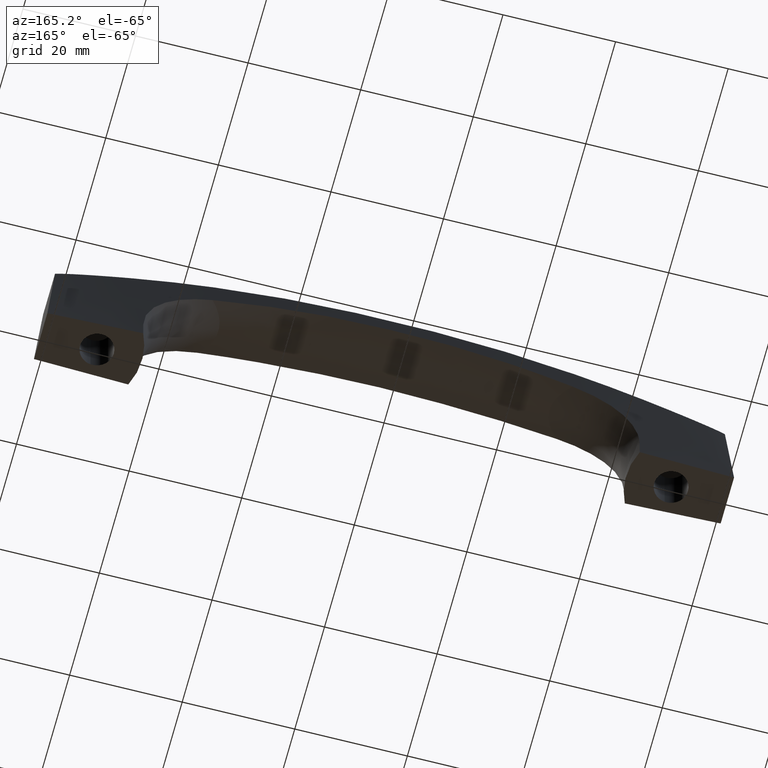
[diagram: clean part render]
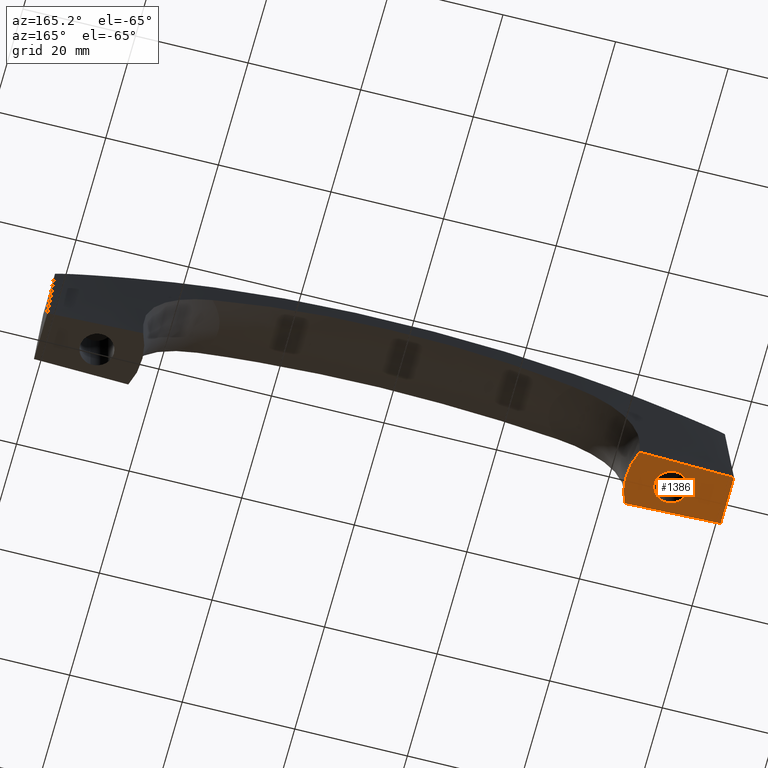
[diagram: same view with one face highlighted and labeled with its STEP entity id]
A machine part, auxiliary view. The second image highlights one B-rep face of the part: STEP entity #1386.
In plain terms, the highlighted face is a freeform B-spline surface patch.
Its self-contained STEP definition (entity closure, byte-faithful):
#85=CARTESIAN_POINT('',(-50.645897295968823,-2.979028579083759,2.839428E-017));
#86=VERTEX_POINT('',#85);
#92=CARTESIAN_POINT('',(-54.0,0.0,0.0));
#93=VERTEX_POINT('',#92);
#94=CARTESIAN_POINT('',(-50.645897295968823,-2.979028579083760,2.839428E-017));
#95=CARTESIAN_POINT('',(-50.822327640982721,-3.000000000000000,0.0));
#96=CARTESIAN_POINT('',(-51.0,-3.0,0.0));
#97=CARTESIAN_POINT('',(-54.0,-3.0,0.0));
#98=CARTESIAN_POINT('',(-54.0,0.0,0.0));
#106=(BOUNDED_CURVE()B_SPLINE_CURVE(2,(#94,#95,#96,#97,#98),.UNSPECIFIED.,.F.,.U.)B_SPLINE_CURVE_WITH_KNOTS((3,2,3),(0.229562473508734,0.250000000000000,0.500000000000000),.UNSPECIFIED.)CURVE()GEOMETRIC_REPRESENTATION_ITEM()RATIONAL_B_SPLINE_CURVE((0.956026754174341,0.976055948325551,1.0,0.707106781186548,1.0))REPRESENTATION_ITEM(''));
#107=EDGE_CURVE('',#86,#93,#106,.T.);
#109=CARTESIAN_POINT('',(-51.183145619048112,2.994404395238473,2.775558E-017));
#110=VERTEX_POINT('',#109);
#111=CARTESIAN_POINT('',(-54.0,0.0,0.0));
#112=CARTESIAN_POINT('',(-54.0,2.822118199879488,0.0));
#113=CARTESIAN_POINT('',(-51.183145619048112,2.994404395238473,2.775558E-017));
#121=(BOUNDED_CURVE()B_SPLINE_CURVE(2,(#111,#112,#113),.UNSPECIFIED.,.F.,.U.)B_SPLINE_CURVE_WITH_KNOTS((3,3),(0.500000000000000,0.739332962190852),.UNSPECIFIED.)CURVE()GEOMETRIC_REPRESENTATION_ITEM()RATIONAL_B_SPLINE_CURVE((1.0,0.719603993343052,0.976072041563651))REPRESENTATION_ITEM(''));
#122=EDGE_CURVE('',#93,#110,#121,.T.);
#196=CARTESIAN_POINT('',(-47.999999999999993,0.0,0.0));
#197=VERTEX_POINT('',#196);
#198=CARTESIAN_POINT('',(-51.183145619048112,2.994404395238473,2.775558E-017));
#199=CARTESIAN_POINT('',(-51.091658290340547,3.0,0.0));
#200=CARTESIAN_POINT('',(-51.0,3.0,0.0));
#201=CARTESIAN_POINT('',(-47.999999999999993,3.0,0.0));
#202=CARTESIAN_POINT('',(-47.999999999999993,0.0,0.0));
#210=(BOUNDED_CURVE()B_SPLINE_CURVE(2,(#198,#199,#200,#201,#202),.UNSPECIFIED.,.F.,.U.)B_SPLINE_CURVE_WITH_KNOTS((3,2,3),(0.739332962190852,0.750000000000000,1.0),.UNSPECIFIED.)CURVE()GEOMETRIC_REPRESENTATION_ITEM()RATIONAL_B_SPLINE_CURVE((0.976072041563650,0.987502787843495,1.0,0.707106781186548,1.0))REPRESENTATION_ITEM(''));
#211=EDGE_CURVE('',#110,#197,#210,.T.);
#213=CARTESIAN_POINT('',(-47.999999999999993,0.0,0.0));
#214=CARTESIAN_POINT('',(-48.0,-2.664523577744385,0.0));
#215=CARTESIAN_POINT('',(-50.645897295968823,-2.979028579083760,2.839428E-017));
#223=(BOUNDED_CURVE()B_SPLINE_CURVE(2,(#213,#214,#215),.UNSPECIFIED.,.F.,.U.)B_SPLINE_CURVE_WITH_KNOTS((3,3),(0.0,0.229562473508734),.UNSPECIFIED.)CURVE()GEOMETRIC_REPRESENTATION_ITEM()RATIONAL_B_SPLINE_CURVE((1.0,0.731050832860996,0.956026754174341))REPRESENTATION_ITEM(''));
#224=EDGE_CURVE('',#197,#86,#223,.T.);
#454=CARTESIAN_POINT('',(-44.102122300624352,5.023570607590810,0.0));
#455=VERTEX_POINT('',#454);
#484=CARTESIAN_POINT('',(-44.102122300624352,-5.023570607590821,4.665728E-014));
#485=VERTEX_POINT('',#484);
#493=CARTESIAN_POINT('',(-44.102122300624323,5.023570607590820,0.0));
#494=CARTESIAN_POINT('',(-41.786418055668811,-3.469447E-015,0.0));
#495=CARTESIAN_POINT('',(-44.102122300624330,-5.023570607590825,0.0));
#503=(BOUNDED_CURVE()B_SPLINE_CURVE(2,(#493,#494,#495),.UNSPECIFIED.,.F.,.U.)CURVE()GEOMETRIC_REPRESENTATION_ITEM()QUASI_UNIFORM_CURVE()RATIONAL_B_SPLINE_CURVE((1.0,0.908156474947973,1.0))REPRESENTATION_ITEM(''));
#504=EDGE_CURVE('',#455,#485,#503,.T.);
#1305=CARTESIAN_POINT('',(-61.0,4.500000000000119,-4.440892E-013));
#1306=VERTEX_POINT('',#1305);
#1312=CARTESIAN_POINT('',(-61.0,-4.500000000000000,-6.661338E-013));
#1313=VERTEX_POINT('',#1312);
#1314=CARTESIAN_POINT('',(-61.0,-4.500000000000000,-6.661338E-013));
#1315=CARTESIAN_POINT('',(-61.0,4.500000000000119,-4.440892E-013));
#1316=QUASI_UNIFORM_CURVE('',1,(#1314,#1315),.UNSPECIFIED.,.F.,.U.);
#1317=EDGE_CURVE('',#1313,#1306,#1316,.T.);
#1355=CARTESIAN_POINT('',(-61.899099965112512,-5.525425291815834,-3.367663E-016));
#1356=CARTESIAN_POINT('',(-61.899099965112512,5.525425561301152,-3.367663E-016));
#1357=CARTESIAN_POINT('',(-42.100899552089878,-5.525425291815834,-3.367663E-016));
#1358=CARTESIAN_POINT('',(-42.100899552089878,5.525425561301152,-3.367663E-016));
#1359=B_SPLINE_SURFACE_WITH_KNOTS('',1,1,((#1355,#1357),(#1356,#1358)),.UNSPECIFIED.,.F.,.F.,.U.,(2,2),(2,2),(0.0,11.050850853116989),(0.0,19.798200413022631),.UNSPECIFIED.);
#1360=ORIENTED_EDGE('',*,*,#504,.T.);
#1361=CARTESIAN_POINT('',(-44.102122300624352,-5.023570607590821,4.665728E-014));
#1362=CARTESIAN_POINT('',(-46.087651374635378,-4.953796615689091,7.560548E-014));
#1363=CARTESIAN_POINT('',(-51.905629093042073,-4.706474693264565,9.239516E-014));
#1364=CARTESIAN_POINT('',(-57.382825673485499,-4.582122773217910,-7.656255E-013));
#1365=CARTESIAN_POINT('',(-61.0,-4.500000000000000,-6.661338E-013));
#1366=B_SPLINE_CURVE_WITH_KNOTS('',3,(#1361,#1362,#1363,#1364,#1365),.UNSPECIFIED.,.F.,.U.,(4,1,4),(0.858626061438684,0.906635781007391,1.0),.UNSPECIFIED.);
#1367=EDGE_CURVE('',#485,#1313,#1366,.T.);
#1368=ORIENTED_EDGE('',*,*,#1367,.T.);
#1369=ORIENTED_EDGE('',*,*,#1317,.T.);
#1370=CARTESIAN_POINT('',(-44.102122300624352,5.023570607590810,0.0));
#1371=CARTESIAN_POINT('',(-46.087651374635378,4.953796615689088,7.191676E-014));
#1372=CARTESIAN_POINT('',(-51.905629093042073,4.706474693264564,1.174712E-013));
#1373=CARTESIAN_POINT('',(-57.382825673485499,4.582122773217950,-4.881936E-013));
#1374=CARTESIAN_POINT('',(-61.0,4.500000000000119,-4.440892E-013));
#1375=B_SPLINE_CURVE_WITH_KNOTS('',3,(#1370,#1371,#1372,#1373,#1374),.UNSPECIFIED.,.F.,.U.,(4,1,4),(0.858626061438684,0.906635781007391,1.0),.UNSPECIFIED.);
#1376=EDGE_CURVE('',#455,#1306,#1375,.T.);
#1377=ORIENTED_EDGE('',*,*,#1376,.F.);
#1378=EDGE_LOOP('',(#1360,#1368,#1369,#1377));
#1379=FACE_OUTER_BOUND('',#1378,.T.);
#1380=ORIENTED_EDGE('',*,*,#122,.F.);
#1381=ORIENTED_EDGE('',*,*,#107,.F.);
#1382=ORIENTED_EDGE('',*,*,#224,.F.);
#1383=ORIENTED_EDGE('',*,*,#211,.F.);
#1384=EDGE_LOOP('',(#1380,#1381,#1382,#1383));
#1385=FACE_BOUND('',#1384,.T.);
#1386=ADVANCED_FACE('',(#1379,#1385),#1359,.T.);